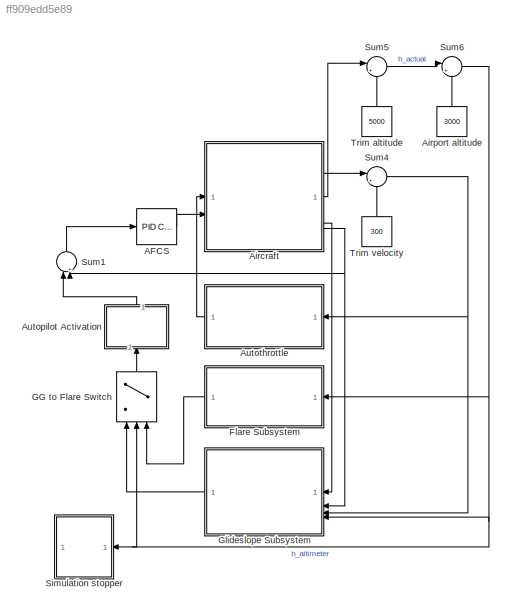
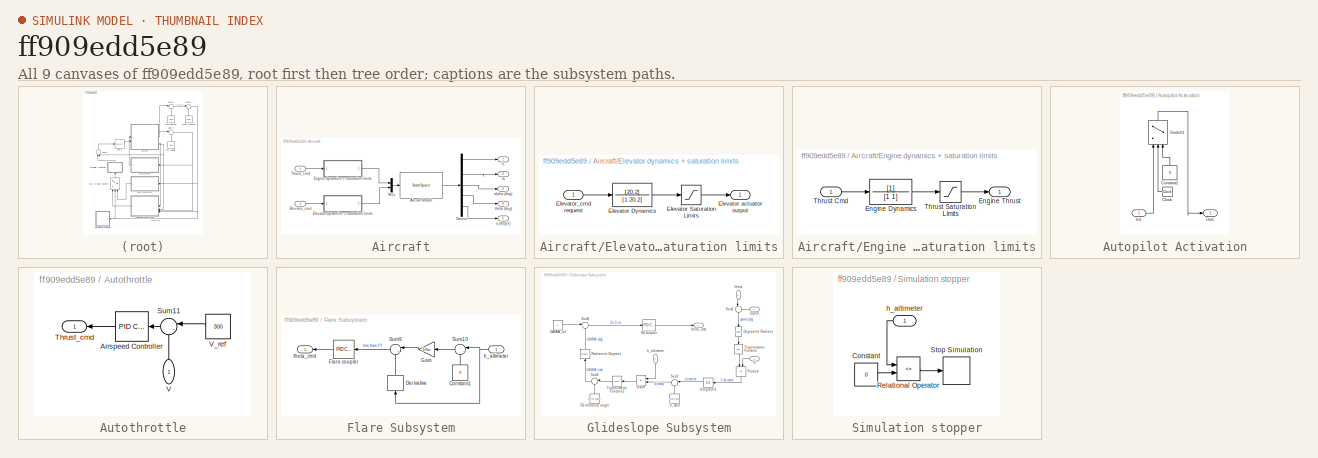
[diagram: thumbnail index - all 9 canvases of the model, root first then tree order]
MODEL slx_ff909edd5e89
KIND model
CONFIG AbsTol = auto
CONFIG EnableMultiTasking = off
CONFIG FixedStep = auto
CONFIG MaxStep = auto
CONFIG MinStep = auto
CONFIG RelTol = 1e-3
CONFIG SampleTimeConstraint = Unconstrained
CONFIG SolverName = VariableStepAuto
CONFIG StartTime = 0.0
CONFIG StopTime = 140
BLOCK [Reference] AFCS  REF=slpidlib/PID Controller
  LibrarySourceBlock = simulink/Continuous/PID Controller
  SourceBlock = slpidlib/PID Controller
  SourceType = PID 1dof
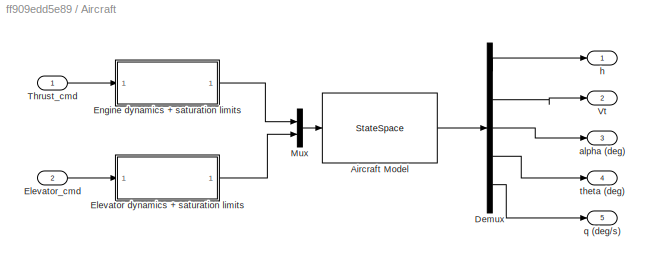
BLOCK [SubSystem] Aircraft
  NameLocation = top
BLOCK [StateSpace] Aircraft/Aircraft Model
  A = SS_long_lo_GS_red.A
  B = SS_long_lo_GS_red.B
  C = SS_long_lo_GS_red.C
  D = SS_long_lo_GS_red.D
  InitialCondition = 0
BLOCK [Demux] Aircraft/Demux
  Outputs = 5
BLOCK [SubSystem] Aircraft/Elevator dynamics + saturation limits
  ShowPortLabels = none
BLOCK [TransferFcn] Aircraft/Elevator dynamics + saturation limits/Elevator Dynamics
  Denominator = [1 20.2]
  Numerator = [20.2]
BLOCK [Saturate] Aircraft/Elevator dynamics + saturation limits/Elevator Saturation Limits
  LowerLimit = -25-trim_control_lo(1)
  UpperLimit = 25-trim_control_lo(1)
BLOCK [Outport] Aircraft/Elevator dynamics + saturation limits/Elevator actuator output
  NameLocation = top
BLOCK [Inport] Aircraft/Elevator dynamics + saturation limits/Elevator_cmd request
  NameLocation = top
BLOCK [Inport] Aircraft/Elevator_cmd
  Port = 2
BLOCK [SubSystem] Aircraft/Engine dynamics + saturation limits
  ShowPortLabels = none
BLOCK [TransferFcn] Aircraft/Engine dynamics + saturation limits/Engine Dynamics
  Denominator = [1 1]
BLOCK [Outport] Aircraft/Engine dynamics + saturation limits/Engine Thrust
  NameLocation = top
BLOCK [Inport] Aircraft/Engine dynamics + saturation limits/Thrust Cmd
  NameLocation = top
BLOCK [Saturate] Aircraft/Engine dynamics + saturation limits/Thrust Saturation Limits
  LowerLimit = 1000-trim_thrust_lo
  UpperLimit = 19000-trim_thrust_lo
BLOCK [Mux] Aircraft/Mux
  DisplayOption = bar
  Inputs = 2
BLOCK [Inport] Aircraft/Thrust_cmd
BLOCK [Outport] Aircraft/Vt
  Port = 2
BLOCK [Outport] Aircraft/alpha (deg)
  Port = 3
BLOCK [Outport] Aircraft/h
BLOCK [Outport] Aircraft/q (deg//s)
  Port = 5
BLOCK [Outport] Aircraft/theta (deg)
  Port = 4
BLOCK [Constant] Airport altitude
  Value = 3000
BLOCK [SubSystem] Autopilot Activation
  NameLocation = left
BLOCK [Clock] Autopilot Activation/Clock
  NameLocation = top
BLOCK [Constant] Autopilot Activation/Constant2
  NameLocation = right
  Value = 0
BLOCK [Inport] Autopilot Activation/In1
BLOCK [Outport] Autopilot Activation/Out1
BLOCK [Switch] Autopilot Activation/Switch1
  Criteria = u2 > Threshold
  InputSameDT = off
  NameLocation = right
  SaturateOnIntegerOverflow = off
  Threshold = 10
BLOCK [SubSystem] Autothrottle
  NameLocation = top
BLOCK [Reference] Autothrottle/Airspeed Controller  REF=slpidlib/PID Controller
  LibrarySourceBlock = simulink/Continuous/PID Controller
  NameLocation = top
  SourceBlock = slpidlib/PID Controller
  SourceType = PID 1dof
BLOCK [Sum] Autothrottle/Sum11
  Inputs = |-+
  NameLocation = top
BLOCK [Outport] Autothrottle/Thrust_cmd
  NameLocation = top
BLOCK [Inport] Autothrottle/V
  NameLocation = right
BLOCK [Constant] Autothrottle/V_ref
  NameLocation = top
  Value = 300
BLOCK [SubSystem] Flare Subsystem
  NameLocation = top
BLOCK [Constant] Flare Subsystem/Constant1
  NameLocation = right
  Value = 0
BLOCK [Derivative] Flare Subsystem/Derivative
  NameLocation = right
BLOCK [Reference] Flare Subsystem/Flare coupler  REF=slpidlib/PID Controller
  LibrarySourceBlock = simulink/Continuous/PID Controller
  NameLocation = top
  SourceBlock = slpidlib/PID Controller
  SourceType = PID 1dof
BLOCK [Gain] Flare Subsystem/Gain
  Gain = 1/tau
  NameLocation = top
BLOCK [Sum] Flare Subsystem/Sum10
  Inputs = |-+
  NameLocation = top
BLOCK [Sum] Flare Subsystem/Sum9
  Inputs = |+-
  NameLocation = top
BLOCK [Inport] Flare Subsystem/h_altimeter
BLOCK [Outport] Flare Subsystem/theta_cmd
  NameLocation = top
BLOCK [Switch] GG to Flare Switch
  Criteria = u2 > Threshold
  InputSameDT = off
  NameLocation = left
  SaturateOnIntegerOverflow = off
  Threshold = h_flare
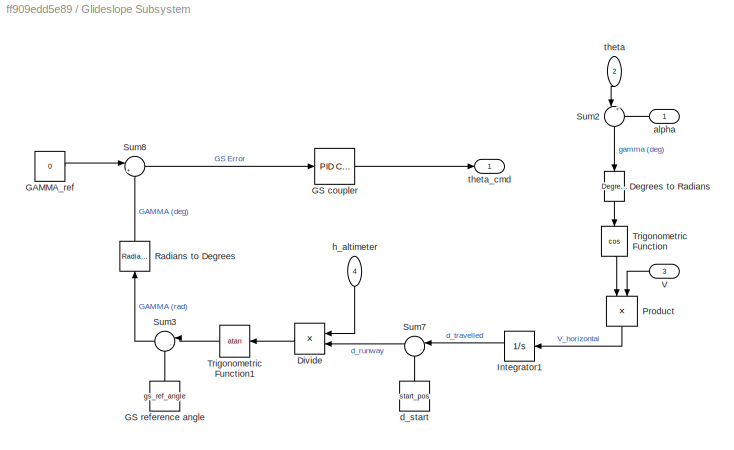
BLOCK [SubSystem] Glideslope Subsystem
  NameLocation = top
BLOCK [Reference] Glideslope Subsystem/Degrees to Radians  REF=simulink_extras/Transformations/Degrees to
Radians
  NameLocation = left
  SourceBlock = simulink_extras/Transformations/Degrees to\nRadians
  SourceType = DegreesToRadians
BLOCK [Product] Glideslope Subsystem/Divide
  Inputs = */
  NameLocation = top
BLOCK [Constant] Glideslope Subsystem/GAMMA_ref
  Value = 0
BLOCK [Reference] Glideslope Subsystem/GS coupler  REF=slpidlib/PID Controller
  LibrarySourceBlock = simulink/Continuous/PID Controller
  SourceBlock = slpidlib/PID Controller
  SourceType = PID 1dof
BLOCK [Constant] Glideslope Subsystem/GS reference angle
  NameLocation = right
  Value = gs_ref_angle
BLOCK [Integrator] Glideslope Subsystem/Integrator1
BLOCK [Product] Glideslope Subsystem/Product
  NameLocation = left
BLOCK [Reference] Glideslope Subsystem/Radians to Degrees  REF=simulink_extras/Transformations/Radians
to Degrees
  NameLocation = right
  SourceBlock = simulink_extras/Transformations/Radians\nto Degrees
  SourceType = RadiansToDegrees
BLOCK [Sum] Glideslope Subsystem/Sum2
  Inputs = |+-
  NameLocation = left
BLOCK [Sum] Glideslope Subsystem/Sum3
  Inputs = |-+
BLOCK [Sum] Glideslope Subsystem/Sum7
  Inputs = |-+
  NameLocation = top
BLOCK [Sum] Glideslope Subsystem/Sum8
  Inputs = |+-
BLOCK [Trigonometry] Glideslope Subsystem/Trigonometric Function
  NameLocation = left
  Operator = cos
BLOCK [Trigonometry] Glideslope Subsystem/Trigonometric Function1
  NameLocation = top
  Operator = atan
BLOCK [Inport] Glideslope Subsystem/V
  Port = 3
BLOCK [Inport] Glideslope Subsystem/alpha
  NameLocation = top
BLOCK [Constant] Glideslope Subsystem/d_start
  NameLocation = right
  Value = start_pos
BLOCK [Inport] Glideslope Subsystem/h_altimeter
  NameLocation = left
  Port = 4
BLOCK [Inport] Glideslope Subsystem/theta
  NameLocation = left
  Port = 2
BLOCK [Outport] Glideslope Subsystem/theta_cmd
BLOCK [SubSystem] Simulation stopper
  NameLocation = top
BLOCK [Constant] Simulation stopper/Constant
  Value = 0
BLOCK [RelationalOperator] Simulation stopper/Relational Operator
  InputSameDT = off
  Operator = <=
  OutDataTypeStr = boolean
  RndMeth = Simplest
BLOCK [Stop] Simulation stopper/Stop Simulation
BLOCK [Inport] Simulation stopper/h_altimeter
BLOCK [Sum] Sum1
  Inputs = |+-
  NameLocation = right
BLOCK [Sum] Sum4
  Inputs = |++
  NameLocation = top
BLOCK [Sum] Sum5
  Inputs = |++
BLOCK [Sum] Sum6
  Inputs = |+-
BLOCK [Constant] Trim altitude
  Value = 5000
BLOCK [Constant] Trim velocity
  NameLocation = right
  Value = 300
LINE AFCS:1 -> Aircraft:2
LINE Aircraft/Aircraft Model:1 -> Aircraft/Demux:1
LINE Aircraft/Demux:1 -> Aircraft/h:1
LINE Aircraft/Demux:2 -> Aircraft/Vt:1
LINE Aircraft/Demux:3 -> Aircraft/alpha (deg):1
LINE Aircraft/Demux:4 -> Aircraft/theta (deg):1
LINE Aircraft/Demux:5 -> Aircraft/q (deg//s):1
LINE Aircraft/Elevator dynamics + saturation limits/Elevator Dynamics:1 -> Aircraft/Elevator dynamics + saturation limits/Elevator Saturation Limits:1
LINE Aircraft/Elevator dynamics + saturation limits/Elevator Saturation Limits:1 -> Aircraft/Elevator dynamics + saturation limits/Elevator actuator output:1
LINE Aircraft/Elevator dynamics + saturation limits/Elevator_cmd request:1 -> Aircraft/Elevator dynamics + saturation limits/Elevator Dynamics:1
LINE Aircraft/Elevator dynamics + saturation limits:1 -> Aircraft/Mux:2
LINE Aircraft/Elevator_cmd:1 -> Aircraft/Elevator dynamics + saturation limits:1
LINE Aircraft/Engine dynamics + saturation limits/Engine Dynamics:1 -> Aircraft/Engine dynamics + saturation limits/Thrust Saturation Limits:1
LINE Aircraft/Engine dynamics + saturation limits/Thrust Cmd:1 -> Aircraft/Engine dynamics + saturation limits/Engine Dynamics:1
LINE Aircraft/Engine dynamics + saturation limits/Thrust Saturation Limits:1 -> Aircraft/Engine dynamics + saturation limits/Engine Thrust:1
LINE Aircraft/Engine dynamics + saturation limits:1 -> Aircraft/Mux:1
LINE Aircraft/Mux:1 -> Aircraft/Aircraft Model:1
LINE Aircraft/Thrust_cmd:1 -> Aircraft/Engine dynamics + saturation limits:1
LINE Aircraft:1 -> Sum5:1
LINE Aircraft:2 -> Sum4:1
LINE Aircraft:3 -> Glideslope Subsystem:1
NET Aircraft:4 -> Glideslope Subsystem:2, Sum1:2
LINE Airport altitude:1 -> Sum6:2
LINE Autopilot Activation/Clock:1 -> Autopilot Activation/Switch1:2
LINE Autopilot Activation/Constant2:1 -> Autopilot Activation/Switch1:3
LINE Autopilot Activation/In1:1 -> Autopilot Activation/Switch1:1
LINE Autopilot Activation/Switch1:1 -> Autopilot Activation/Out1:1
LINE Autopilot Activation:1 -> Sum1:1
LINE Autothrottle/Airspeed Controller:1 -> Autothrottle/Thrust_cmd:1
LINE Autothrottle/Sum11:1 -> Autothrottle/Airspeed Controller:1
LINE Autothrottle/V:1 -> Autothrottle/Sum11:2
LINE Autothrottle/V_ref:1 -> Autothrottle/Sum11:1
LINE Autothrottle:1 -> Aircraft:1
LINE Flare Subsystem/Constant1:1 -> Flare Subsystem/Sum10:2
LINE Flare Subsystem/Derivative:1 -> Flare Subsystem/Sum9:2
LINE Flare Subsystem/Flare coupler:1 -> Flare Subsystem/theta_cmd:1
LINE Flare Subsystem/Gain:1 -> Flare Subsystem/Sum9:1
LINE Flare Subsystem/Sum10:1 -> Flare Subsystem/Gain:1
LINE Flare Subsystem/Sum9:1 -> Flare Subsystem/Flare coupler:1
NET Flare Subsystem/h_altimeter:1 -> Flare Subsystem/Derivative:1, Flare Subsystem/Sum10:1
LINE Flare Subsystem:1 -> GG to Flare Switch:3
LINE GG to Flare Switch:1 -> Autopilot Activation:1
LINE Glideslope Subsystem/Degrees to Radians:1 -> Glideslope Subsystem/Trigonometric Function:1
LINE Glideslope Subsystem/Divide:1 -> Glideslope Subsystem/Trigonometric Function1:1
LINE Glideslope Subsystem/GAMMA_ref:1 -> Glideslope Subsystem/Sum8:1
LINE Glideslope Subsystem/GS coupler:1 -> Glideslope Subsystem/theta_cmd:1
LINE Glideslope Subsystem/GS reference angle:1 -> Glideslope Subsystem/Sum3:2
LINE Glideslope Subsystem/Integrator1:1 -> Glideslope Subsystem/Sum7:1
LINE Glideslope Subsystem/Product:1 -> Glideslope Subsystem/Integrator1:1
LINE Glideslope Subsystem/Radians to Degrees:1 -> Glideslope Subsystem/Sum8:2
LINE Glideslope Subsystem/Sum2:1 -> Glideslope Subsystem/Degrees to Radians:1
LINE Glideslope Subsystem/Sum3:1 -> Glideslope Subsystem/Radians to Degrees:1
LINE Glideslope Subsystem/Sum7:1 -> Glideslope Subsystem/Divide:2
LINE Glideslope Subsystem/Sum8:1 -> Glideslope Subsystem/GS coupler:1
LINE Glideslope Subsystem/Trigonometric Function1:1 -> Glideslope Subsystem/Sum3:1
LINE Glideslope Subsystem/Trigonometric Function:1 -> Glideslope Subsystem/Product:1
LINE Glideslope Subsystem/V:1 -> Glideslope Subsystem/Product:2
LINE Glideslope Subsystem/alpha:1 -> Glideslope Subsystem/Sum2:2
LINE Glideslope Subsystem/d_start:1 -> Glideslope Subsystem/Sum7:2
LINE Glideslope Subsystem/h_altimeter:1 -> Glideslope Subsystem/Divide:1
LINE Glideslope Subsystem/theta:1 -> Glideslope Subsystem/Sum2:1
LINE Glideslope Subsystem:1 -> GG to Flare Switch:1
LINE Simulation stopper/Constant:1 -> Simulation stopper/Relational Operator:2
LINE Simulation stopper/Relational Operator:1 -> Simulation stopper/Stop Simulation:1
LINE Simulation stopper/h_altimeter:1 -> Simulation stopper/Relational Operator:1
LINE Sum1:1 -> AFCS:1
NET Sum4:1 -> Autothrottle:1, Glideslope Subsystem:3
LINE Sum5:1 -> Sum6:1
NET Sum6:1 -> Flare Subsystem:1, GG to Flare Switch:2, Glideslope Subsystem:4, Simulation stopper:1
LINE Trim altitude:1 -> Sum5:2
LINE Trim velocity:1 -> Sum4:2
note: NET lines group one-source signal fan-out (src -> all destinations, sorted); 1:1 wires keep LINE
